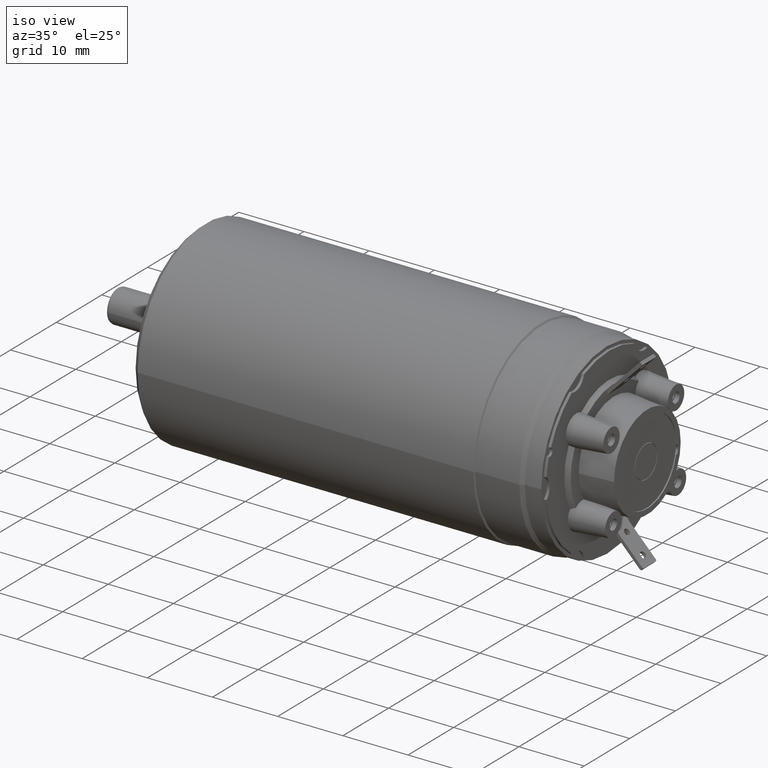
[diagram: clean part render]
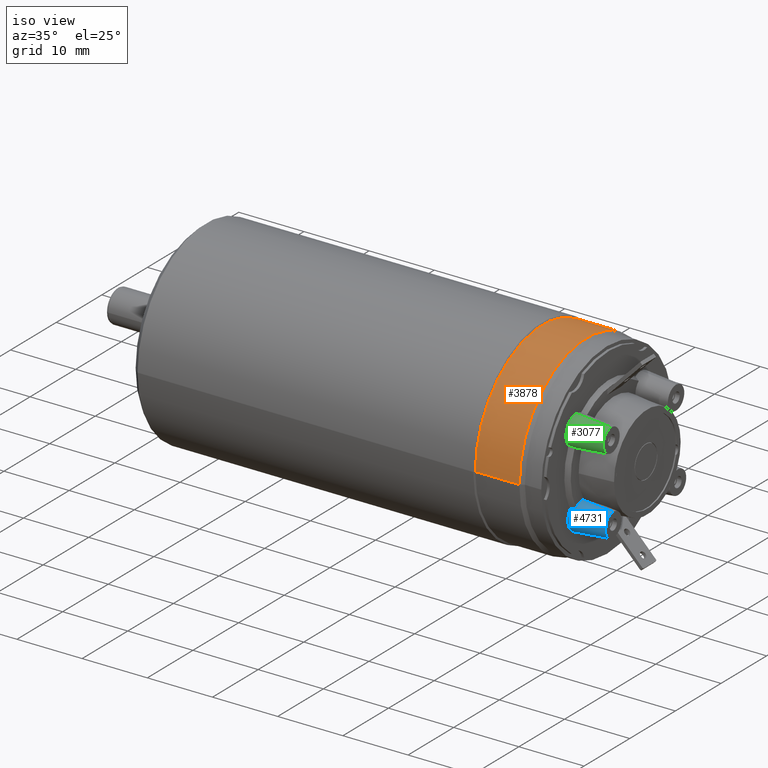
[diagram: same view with three faces highlighted in distinct colors, each labeled with its STEP entity id]
A machine part, iso view with three faces highlighted in distinct colors.
Their STEP definitions:

[orange] entity #3878 — the highlighted cylindrical surface (partial cylindrical patch) has radius 14.75 mm, axis along (-1, 0, 0).
#1075=DIRECTION('',(-1.E0,0.E0,0.E0));
#1076=VECTOR('',#1075,6.749444650053E0);
#1077=CARTESIAN_POINT('',(5.393782217351E0,1.475E1,0.E0));
#1078=LINE('',#1077,#1076);
#1079=CARTESIAN_POINT('',(5.393782217351E0,0.E0,0.E0));
#1080=DIRECTION('',(1.E0,0.E0,0.E0));
#1081=DIRECTION('',(0.E0,1.E0,0.E0));
#1082=AXIS2_PLACEMENT_3D('',#1079,#1080,#1081);
#1084=DIRECTION('',(-1.E0,0.E0,0.E0));
#1085=VECTOR('',#1084,6.749444650053E0);
#1086=CARTESIAN_POINT('',(5.393782217351E0,-1.475E1,0.E0));
#1087=LINE('',#1086,#1085);
#1102=CARTESIAN_POINT('',(-1.355662432703E0,0.E0,0.E0));
#1103=DIRECTION('',(1.E0,0.E0,0.E0));
#1104=DIRECTION('',(0.E0,1.E0,0.E0));
#1105=AXIS2_PLACEMENT_3D('',#1102,#1103,#1104);
#2314=CARTESIAN_POINT('',(5.393782217351E0,1.475E1,0.E0));
#2315=VERTEX_POINT('',#2314);
#2316=CARTESIAN_POINT('',(-1.355662432703E0,1.475E1,0.E0));
#2317=VERTEX_POINT('',#2316);
#2328=CARTESIAN_POINT('',(5.393782217351E0,-1.475E1,0.E0));
#2329=VERTEX_POINT('',#2328);
#2330=CARTESIAN_POINT('',(-1.355662432703E0,-1.475E1,0.E0));
#2331=VERTEX_POINT('',#2330);
#3864=CARTESIAN_POINT('',(1.1625E1,0.E0,0.E0));
#3865=DIRECTION('',(-1.E0,0.E0,0.E0));
#3866=DIRECTION('',(0.E0,1.E0,0.E0));
#3867=AXIS2_PLACEMENT_3D('',#3864,#3865,#3866);
#3868=CYLINDRICAL_SURFACE('',#3867,1.475E1);
#3870=ORIENTED_EDGE('',*,*,#3869,.F.);
#3871=ORIENTED_EDGE('',*,*,#3859,.T.);
#3873=ORIENTED_EDGE('',*,*,#3872,.T.);
#3875=ORIENTED_EDGE('',*,*,#3874,.F.);
#3876=EDGE_LOOP('',(#3870,#3871,#3873,#3875));
#3877=FACE_OUTER_BOUND('',#3876,.F.);
#3878=ADVANCED_FACE('',(#3877),#3868,.T.);
#1083=CIRCLE('',#1082,1.475E1);
#1106=CIRCLE('',#1105,1.475E1);
#3859=EDGE_CURVE('',#2315,#2329,#1083,.T.);
#3869=EDGE_CURVE('',#2315,#2317,#1078,.T.);
#3872=EDGE_CURVE('',#2329,#2331,#1087,.T.);
#3874=EDGE_CURVE('',#2317,#2331,#1106,.T.);

[blue] entity #4731 — the highlighted conical surface has half-angle 5 deg.
#83=DIRECTION('',(9.961946980917E-1,0.E0,-8.715574274766E-2));
#84=VECTOR('',#83,4.717953236454E0);
#85=CARTESIAN_POINT('',(9.6E0,-6.87E0,-3.978803281428E0));
#86=LINE('',#85,#84);
#132=CARTESIAN_POINT('',(8.9E0,-6.87E0,-6.19E0));
#133=DIRECTION('',(-1.E0,0.E0,0.E0));
#134=DIRECTION('',(0.E0,0.E0,-1.E0));
#135=AXIS2_PLACEMENT_3D('',#132,#133,#134);
#239=CARTESIAN_POINT('',(9.6E0,-8.344005430836E0,-4.541758841041E0));
#240=CARTESIAN_POINT('',(9.520062189739E0,-8.382782698045E0,-4.567054630719E0));
#241=CARTESIAN_POINT('',(9.361631146768E0,-8.458240155249E0,-4.619746562007E0));
#242=CARTESIAN_POINT('',(9.128067653870E0,-8.565354455688E0,-4.704903829882E0));
#243=CARTESIAN_POINT('',(8.975527217399E0,-8.632554269860E0,-4.765435879755E0));
#244=CARTESIAN_POINT('',(8.9E0,-8.665129208324E0,-4.796626701819E0));
#317=CARTESIAN_POINT('',(9.6E0,-6.87E0,-6.19E0));
#318=DIRECTION('',(-1.E0,0.E0,0.E0));
#319=DIRECTION('',(0.E0,-6.666098128929E-1,7.454068401584E-1));
#320=AXIS2_PLACEMENT_3D('',#317,#318,#319);
#432=CARTESIAN_POINT('',(1.43E1,-6.87E0,-6.19E0));
#433=DIRECTION('',(-1.E0,0.E0,0.E0));
#434=DIRECTION('',(0.E0,0.E0,-1.E0));
#435=AXIS2_PLACEMENT_3D('',#432,#433,#434);
#1667=DIRECTION('',(9.961946980917E-1,0.E0,8.715574274766E-2));
#1668=VECTOR('',#1667,5.420627122734E0);
#1669=CARTESIAN_POINT('',(8.9E0,-6.87E0,-8.462438783040E0));
#1670=LINE('',#1669,#1668);
#2097=CARTESIAN_POINT('',(8.9E0,-6.87E0,-8.462438783040E0));
#2098=CARTESIAN_POINT('',(1.43E1,-6.87E0,-7.99E0));
#2099=VERTEX_POINT('',#2097);
#2100=VERTEX_POINT('',#2098);
#2101=CARTESIAN_POINT('',(8.9E0,-8.665129208324E0,-4.796626701819E0));
#2102=VERTEX_POINT('',#2101);
#2103=CARTESIAN_POINT('',(1.43E1,-6.87E0,-4.39E0));
#2104=VERTEX_POINT('',#2103);
#2107=CARTESIAN_POINT('',(9.6E0,-6.87E0,-3.978803281428E0));
#2108=VERTEX_POINT('',#2107);
#2234=CARTESIAN_POINT('',(9.6E0,-8.344005430836E0,-4.541758841041E0));
#2235=VERTEX_POINT('',#2234);
#4718=CARTESIAN_POINT('',(1.16E1,-6.87E0,-6.19E0));
#4719=DIRECTION('',(-1.E0,0.E0,0.E0));
#4720=DIRECTION('',(0.E0,0.E0,1.E0));
#4721=AXIS2_PLACEMENT_3D('',#4718,#4719,#4720);
#4722=CONICAL_SURFACE('',#4721,2.036219391520E0,5.E0);
#4723=ORIENTED_EDGE('',*,*,#2735,.T.);
#4724=ORIENTED_EDGE('',*,*,#2795,.F.);
#4725=ORIENTED_EDGE('',*,*,#2873,.T.);
#4726=ORIENTED_EDGE('',*,*,#2667,.T.);
#4727=ORIENTED_EDGE('',*,*,#3000,.F.);
#4728=ORIENTED_EDGE('',*,*,#2663,.F.);
#4729=EDGE_LOOP('',(#4723,#4724,#4725,#4726,#4727,#4728));
#4730=FACE_OUTER_BOUND('',#4729,.F.);
#4731=ADVANCED_FACE('',(#4730),#4722,.T.);
#136=CIRCLE('',#135,2.272438783040E0);
#245=B_SPLINE_CURVE_WITH_KNOTS('',3,(#239,#240,#241,#242,#243,#244),
.UNSPECIFIED.,.F.,.F.,(4,1,1,4),(0.E0,3.333333333333E-1,6.666666666667E-1,1.E0),
.UNSPECIFIED.);
#321=CIRCLE('',#320,2.211196718572E0);
#436=CIRCLE('',#435,1.8E0);
#2663=EDGE_CURVE('',#2099,#2100,#1670,.T.);
#2667=EDGE_CURVE('',#2108,#2104,#86,.T.);
#2735=EDGE_CURVE('',#2099,#2102,#136,.T.);
#2795=EDGE_CURVE('',#2235,#2102,#245,.T.);
#2873=EDGE_CURVE('',#2235,#2108,#321,.T.);
#3000=EDGE_CURVE('',#2100,#2104,#436,.T.);

[green] entity #3077 — the highlighted conical surface has half-angle 5 deg.
#127=CARTESIAN_POINT('',(8.9E0,-7.29E0,5.7E0));
#128=DIRECTION('',(-1.E0,0.E0,0.E0));
#129=DIRECTION('',(0.E0,-7.432480045941E-1,-6.690159965702E-1));
#130=AXIS2_PLACEMENT_3D('',#127,#128,#129);
#251=CARTESIAN_POINT('',(8.9E0,-8.978985591057E0,4.179702102920E0));
#252=CARTESIAN_POINT('',(8.975627538241E0,-8.944205693530E0,4.150953108443E0));
#253=CARTESIAN_POINT('',(9.128301834045E0,-8.872760307028E0,4.095472062073E0));
#254=CARTESIAN_POINT('',(9.361801299534E0,-8.759817602658E0,4.018405318740E0));
#255=CARTESIAN_POINT('',(9.520134949872E0,-8.680801400095E0,3.971387384567E0));
#256=CARTESIAN_POINT('',(9.6E0,-8.640334014659E0,3.949003433162E0));
#322=CARTESIAN_POINT('',(9.6E0,-7.29E0,5.7E0));
#323=DIRECTION('',(-1.E0,0.E0,0.E0));
#324=DIRECTION('',(0.E0,0.E0,-1.E0));
#325=AXIS2_PLACEMENT_3D('',#322,#323,#324);
#417=CARTESIAN_POINT('',(1.43E1,-7.29E0,5.7E0));
#418=DIRECTION('',(-1.E0,0.E0,0.E0));
#419=DIRECTION('',(0.E0,0.E0,-1.E0));
#420=AXIS2_PLACEMENT_3D('',#417,#418,#419);
#571=DIRECTION('',(9.961946980917E-1,0.E0,-8.715574274766E-2));
#572=VECTOR('',#571,5.420627122734E0);
#573=CARTESIAN_POINT('',(8.9E0,-7.29E0,7.972438783040E0));
#574=LINE('',#573,#572);
#575=DIRECTION('',(9.961946980917E-1,0.E0,8.715574274766E-2));
#576=VECTOR('',#575,4.717953236454E0);
#577=CARTESIAN_POINT('',(9.6E0,-7.29E0,3.488803281428E0));
#578=LINE('',#577,#576);
#2130=CARTESIAN_POINT('',(8.9E0,-7.29E0,7.972438783040E0));
#2131=CARTESIAN_POINT('',(1.43E1,-7.29E0,7.5E0));
#2132=VERTEX_POINT('',#2130);
#2133=VERTEX_POINT('',#2131);
#2134=CARTESIAN_POINT('',(9.6E0,-7.29E0,3.488803281428E0));
#2135=CARTESIAN_POINT('',(1.43E1,-7.29E0,3.9E0));
#2136=VERTEX_POINT('',#2134);
#2137=VERTEX_POINT('',#2135);
#2148=CARTESIAN_POINT('',(8.9E0,-8.978985591057E0,4.179702102920E0));
#2149=VERTEX_POINT('',#2148);
#2150=CARTESIAN_POINT('',(9.6E0,-8.640334014659E0,3.949003433162E0));
#2151=VERTEX_POINT('',#2150);
#3064=CARTESIAN_POINT('',(1.16E1,-7.29E0,5.7E0));
#3065=DIRECTION('',(-1.E0,0.E0,0.E0));
#3066=DIRECTION('',(0.E0,0.E0,1.E0));
#3067=AXIS2_PLACEMENT_3D('',#3064,#3065,#3066);
#3068=CONICAL_SURFACE('',#3067,2.036219391520E0,5.E0);
#3069=ORIENTED_EDGE('',*,*,#2731,.T.);
#3070=ORIENTED_EDGE('',*,*,#3059,.T.);
#3071=ORIENTED_EDGE('',*,*,#2981,.F.);
#3072=ORIENTED_EDGE('',*,*,#3056,.F.);
#3073=ORIENTED_EDGE('',*,*,#2876,.T.);
#3074=ORIENTED_EDGE('',*,*,#2798,.F.);
#3075=EDGE_LOOP('',(#3069,#3070,#3071,#3072,#3073,#3074));
#3076=FACE_OUTER_BOUND('',#3075,.F.);
#3077=ADVANCED_FACE('',(#3076),#3068,.T.);
#131=CIRCLE('',#130,2.272438783040E0);
#257=B_SPLINE_CURVE_WITH_KNOTS('',3,(#251,#252,#253,#254,#255,#256),
.UNSPECIFIED.,.F.,.F.,(4,1,1,4),(0.E0,3.333333333333E-1,6.666666666667E-1,1.E0),
.UNSPECIFIED.);
#326=CIRCLE('',#325,2.211196718572E0);
#421=CIRCLE('',#420,1.8E0);
#2731=EDGE_CURVE('',#2149,#2132,#131,.T.);
#2798=EDGE_CURVE('',#2149,#2151,#257,.T.);
#2876=EDGE_CURVE('',#2136,#2151,#326,.T.);
#2981=EDGE_CURVE('',#2137,#2133,#421,.T.);
#3056=EDGE_CURVE('',#2136,#2137,#578,.T.);
#3059=EDGE_CURVE('',#2132,#2133,#574,.T.);